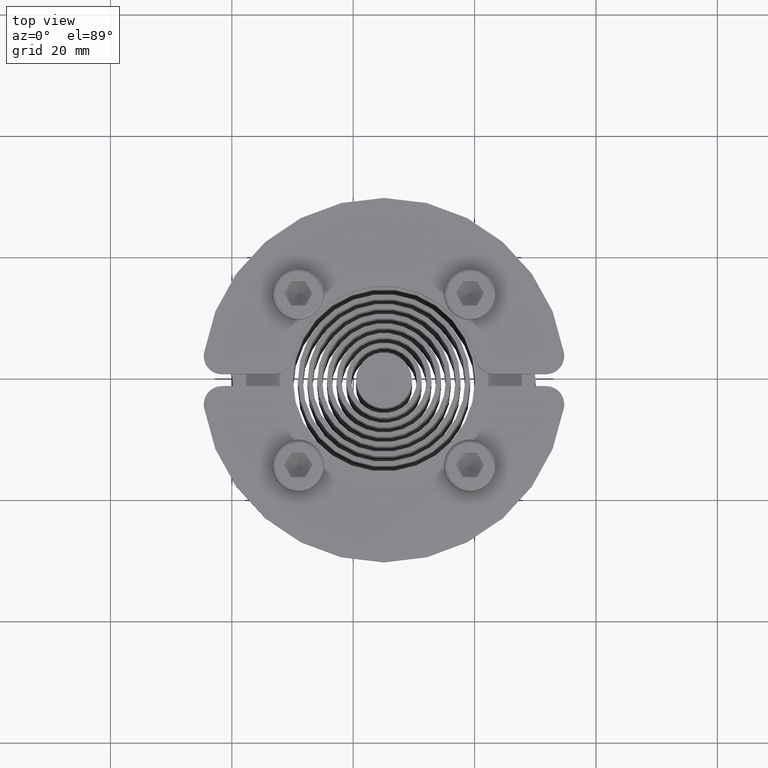
[diagram: clean part render]
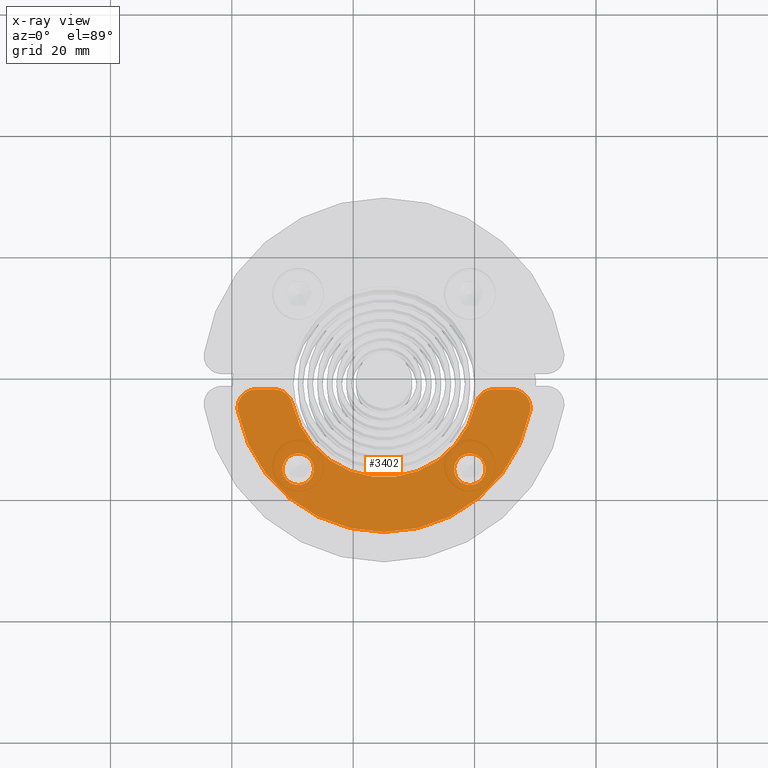
[diagram: x-ray — body ghosted, one internal face saturated and labeled with its STEP entity id]
A machine part, top view, then the same camera in x-ray: the body is ghosted and one INTERNAL B-rep face — a face not visible from any outside direction — is saturated and labeled: STEP entity #3402.
In plain terms, the highlighted planar face has unit normal (0, -0, 1).
Its self-contained STEP definition (entity closure, byte-faithful):
#2926=CARTESIAN_POINT('',(-11.542135623730587,-1.392135623731406,1.750000000000000));
#2927=VERTEX_POINT('',#2926);
#2943=CARTESIAN_POINT('',(-16.742135623730611,-1.392135623731406,1.750000000000000));
#2944=VERTEX_POINT('',#2943);
#2951=CARTESIAN_POINT('',(-14.142135623730610,-1.392135623731406,1.750000000000000));
#2952=DIRECTION('',(0.0,0.0,1.0));
#2953=DIRECTION('',(1.0,0.0,0.0));
#2954=AXIS2_PLACEMENT_3D('',#2951,#2952,#2953);
#2955=CIRCLE('',#2954,2.600000000000000);
#2956=EDGE_CURVE('',#2944,#2927,#2955,.T.);
#2968=CARTESIAN_POINT('',(16.742135623730633,-1.392135623731633,1.750000000000000));
#2969=VERTEX_POINT('',#2968);
#2985=CARTESIAN_POINT('',(11.542135623730610,-1.392135623731633,1.750000000000000));
#2986=VERTEX_POINT('',#2985);
#2993=CARTESIAN_POINT('',(14.142135623730610,-1.392135623731633,1.750000000000000));
#2994=DIRECTION('',(0.0,0.0,1.0));
#2995=DIRECTION('',(1.0,0.0,0.0));
#2996=AXIS2_PLACEMENT_3D('',#2993,#2994,#2995);
#2997=CIRCLE('',#2996,2.600000000000000);
#2998=EDGE_CURVE('',#2986,#2969,#2997,.T.);
#3008=CARTESIAN_POINT('',(-24.124630174277627,8.749999999999659,1.750000000000000));
#3009=VERTEX_POINT('',#3008);
#3018=CARTESIAN_POINT('',(-21.124630174277627,11.749999999999659,1.750000000000000));
#3019=VERTEX_POINT('',#3018);
#3020=CARTESIAN_POINT('',(-21.124630174277627,8.749999999999659,1.750000000000000));
#3021=DIRECTION('',(0.0,0.0,-1.0));
#3022=DIRECTION('',(1.0,0.0,0.0));
#3023=AXIS2_PLACEMENT_3D('',#3020,#3021,#3022);
#3024=CIRCLE('',#3023,3.0);
#3025=EDGE_CURVE('',#3009,#3019,#3024,.T.);
#3052=CARTESIAN_POINT('',(24.124630174277627,8.749999999999659,1.750000000000000));
#3053=VERTEX_POINT('',#3052);
#3069=CARTESIAN_POINT('',(21.124630174277627,11.749999999999659,1.750000000000000));
#3070=VERTEX_POINT('',#3069);
#3077=CARTESIAN_POINT('',(21.124630174277627,8.749999999999659,1.750000000000000));
#3078=DIRECTION('',(0.0,0.0,-1.0));
#3079=DIRECTION('',(1.0,0.0,0.0));
#3080=AXIS2_PLACEMENT_3D('',#3077,#3078,#3079);
#3081=CIRCLE('',#3080,3.0);
#3082=EDGE_CURVE('',#3070,#3053,#3081,.T.);
#3092=CARTESIAN_POINT('',(-15.133355349021940,9.398648648648532,1.750000000000000));
#3093=VERTEX_POINT('',#3092);
#3094=CARTESIAN_POINT('',(15.133355349021940,9.398648648648532,1.750000000000000));
#3095=VERTEX_POINT('',#3094);
#3096=CARTESIAN_POINT('',(0.0,12.749999999999659,1.750000000000000));
#3097=DIRECTION('',(0.0,0.0,1.0));
#3098=DIRECTION('',(1.0,0.0,0.0));
#3099=AXIS2_PLACEMENT_3D('',#3096,#3097,#3098);
#3100=CIRCLE('',#3099,15.499999999999186);
#3101=EDGE_CURVE('',#3093,#3095,#3100,.T.);
#3134=CARTESIAN_POINT('',(18.062391868188342,11.749999999999659,1.750000000000000));
#3135=VERTEX_POINT('',#3134);
#3136=CARTESIAN_POINT('',(18.062391868188456,8.749999999999659,1.750000000000000));
#3137=DIRECTION('',(0.0,0.0,-1.0));
#3138=DIRECTION('',(1.0,0.0,0.0));
#3139=AXIS2_PLACEMENT_3D('',#3136,#3137,#3138);
#3140=CIRCLE('',#3139,3.0);
#3141=EDGE_CURVE('',#3095,#3135,#3140,.T.);
#3167=CARTESIAN_POINT('',(18.062391868188342,11.749999999999659,1.750000000000000));
#3168=DIRECTION('',(1.0,0.0,0.0));
#3169=VECTOR('',#3168,3.062238306089284);
#3170=LINE('',#3167,#3169);
#3171=EDGE_CURVE('',#3135,#3070,#3170,.T.);
#3190=CARTESIAN_POINT('',(24.072252989290973,8.191860465104810,1.750000000000000));
#3191=VERTEX_POINT('',#3190);
#3192=CARTESIAN_POINT('',(21.124630174277627,8.749999999999659,1.750000000000000));
#3193=DIRECTION('',(0.0,0.0,-1.0));
#3194=DIRECTION('',(1.0,0.0,0.0));
#3195=AXIS2_PLACEMENT_3D('',#3192,#3193,#3194);
#3196=CIRCLE('',#3195,3.0);
#3197=EDGE_CURVE('',#3053,#3191,#3196,.T.);
#3222=CARTESIAN_POINT('',(-24.072252989292338,8.191860465116065,1.750000000000000));
#3223=VERTEX_POINT('',#3222);
#3224=CARTESIAN_POINT('',(0.0,12.749999999999659,1.750000000000000));
#3225=DIRECTION('',(0.0,0.0,-1.0));
#3226=DIRECTION('',(1.0,0.0,0.0));
#3227=AXIS2_PLACEMENT_3D('',#3224,#3225,#3226);
#3228=CIRCLE('',#3227,24.499999999999300);
#3229=EDGE_CURVE('',#3191,#3223,#3228,.T.);
#3264=CARTESIAN_POINT('',(-21.124630174277627,8.749999999999659,1.750000000000000));
#3265=DIRECTION('',(0.0,0.0,-1.0));
#3266=DIRECTION('',(1.0,0.0,0.0));
#3267=AXIS2_PLACEMENT_3D('',#3264,#3265,#3266);
#3268=CIRCLE('',#3267,3.0);
#3269=EDGE_CURVE('',#3223,#3009,#3268,.T.);
#3279=CARTESIAN_POINT('',(-18.062391868188456,11.749999999999659,1.750000000000000));
#3280=VERTEX_POINT('',#3279);
#3281=CARTESIAN_POINT('',(-21.124630174277627,11.749999999999659,1.750000000000000));
#3282=DIRECTION('',(1.0,0.0,0.0));
#3283=VECTOR('',#3282,3.062238306089171);
#3284=LINE('',#3281,#3283);
#3285=EDGE_CURVE('',#3019,#3280,#3284,.T.);
#3310=CARTESIAN_POINT('',(-18.062391868188456,8.749999999999659,1.750000000000000));
#3311=DIRECTION('',(0.0,0.0,-1.0));
#3312=DIRECTION('',(1.0,0.0,0.0));
#3313=AXIS2_PLACEMENT_3D('',#3310,#3311,#3312);
#3314=CIRCLE('',#3313,3.0);
#3315=EDGE_CURVE('',#3280,#3093,#3314,.T.);
#3335=CARTESIAN_POINT('',(14.142135623730610,-1.392135623731633,1.750000000000000));
#3336=DIRECTION('',(0.0,0.0,1.0));
#3337=DIRECTION('',(1.0,0.0,0.0));
#3338=AXIS2_PLACEMENT_3D('',#3335,#3336,#3337);
#3339=CIRCLE('',#3338,2.600000000000000);
#3340=EDGE_CURVE('',#2969,#2986,#3339,.T.);
#3359=CARTESIAN_POINT('',(-14.142135623730610,-1.392135623731406,1.750000000000000));
#3360=DIRECTION('',(0.0,0.0,1.0));
#3361=DIRECTION('',(1.0,0.0,0.0));
#3362=AXIS2_PLACEMENT_3D('',#3359,#3360,#3361);
#3363=CIRCLE('',#3362,2.600000000000000);
#3364=EDGE_CURVE('',#2927,#2944,#3363,.T.);
#3377=CARTESIAN_POINT('',(0.0,1.031270095102968,1.750000000000000));
#3378=DIRECTION('',(0.0,0.0,1.0));
#3379=DIRECTION('',(1.0,0.0,0.0));
#3380=AXIS2_PLACEMENT_3D('',#3377,#3378,#3379);
#3381=PLANE('',#3380);
#3382=ORIENTED_EDGE('',*,*,#3101,.F.);
#3383=ORIENTED_EDGE('',*,*,#3315,.F.);
#3384=ORIENTED_EDGE('',*,*,#3285,.F.);
#3385=ORIENTED_EDGE('',*,*,#3025,.F.);
#3386=ORIENTED_EDGE('',*,*,#3269,.F.);
#3387=ORIENTED_EDGE('',*,*,#3229,.F.);
#3388=ORIENTED_EDGE('',*,*,#3197,.F.);
#3389=ORIENTED_EDGE('',*,*,#3082,.F.);
#3390=ORIENTED_EDGE('',*,*,#3171,.F.);
#3391=ORIENTED_EDGE('',*,*,#3141,.F.);
#3392=EDGE_LOOP('',(#3382,#3383,#3384,#3385,#3386,#3387,#3388,#3389,#3390,#3391));
#3393=FACE_OUTER_BOUND('',#3392,.T.);
#3394=ORIENTED_EDGE('',*,*,#3364,.F.);
#3395=ORIENTED_EDGE('',*,*,#2956,.F.);
#3396=EDGE_LOOP('',(#3394,#3395));
#3397=FACE_BOUND('',#3396,.T.);
#3398=ORIENTED_EDGE('',*,*,#3340,.F.);
#3399=ORIENTED_EDGE('',*,*,#2998,.F.);
#3400=EDGE_LOOP('',(#3398,#3399));
#3401=FACE_BOUND('',#3400,.T.);
#3402=ADVANCED_FACE('',(#3393,#3397,#3401),#3381,.T.);